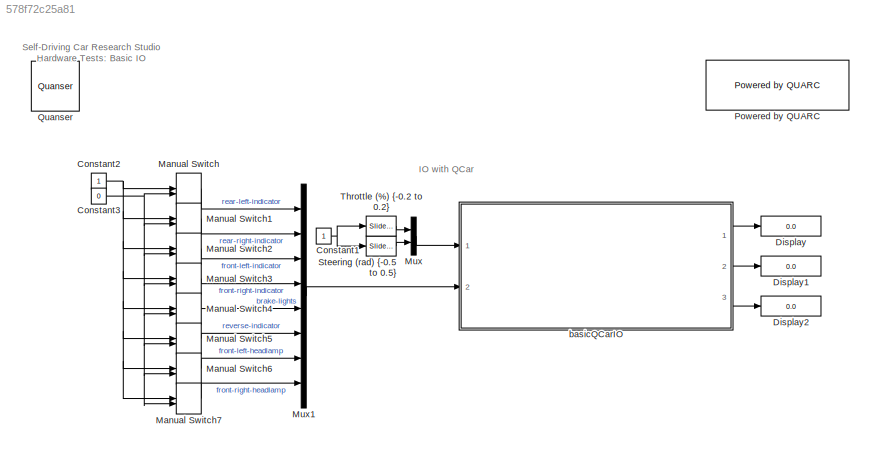
MODEL slx_578f72c25a81
KIND model
CONFIG AbsTol = auto
CONFIG EnableMultiTasking = on
CONFIG FixedStep = 0.002
CONFIG MaxStep = auto
CONFIG MinStep = auto
CONFIG RelTol = 1e-3
CONFIG SampleTimeConstraint = Unconstrained
CONFIG Solver = ode2
CONFIG SolverName = ode2
CONFIG StartTime = 0.0
CONFIG StopTime = inf
BLOCK [Constant] Constant1
BLOCK [Constant] Constant2
BLOCK [Constant] Constant3
  Value = 0
BLOCK [Display] Display
  Decimation = 0.5/qc_get_step_size
  Ports = [1]
BLOCK [Display] Display1
  Decimation = 0.5/qc_get_step_size
  Ports = [1]
BLOCK [Display] Display2
  Decimation = 0.5/qc_get_step_size
  Ports = [1]
BLOCK [ManualSwitch] Manual Switch
BLOCK [ManualSwitch] Manual Switch1
BLOCK [ManualSwitch] Manual Switch2
BLOCK [ManualSwitch] Manual Switch3
BLOCK [ManualSwitch] Manual Switch4
BLOCK [ManualSwitch] Manual Switch5
BLOCK [ManualSwitch] Manual Switch6
BLOCK [ManualSwitch] Manual Switch7
BLOCK [Mux] Mux
  DisplayOption = bar
  Inputs = 2
  Ports = [2, 1]
BLOCK [Mux] Mux1
  DisplayOption = bar
  Inputs = 8
  Ports = [8, 1]
BLOCK [Reference] Powered by QUARC  REF=quarc_library/Logos/Powered by QUARC
  Ports = []
  SourceBlock = quarc_library/Logos/Powered by QUARC
  SourceProductName = QUARC Targets
  SourceType = Powered by QUARC
BLOCK [Reference] Quanser  REF=quarc_library/Logos/Quanser
  Ports = []
  SourceBlock = quarc_library/Logos/Quanser
  SourceProductName = QUARC Targets
  SourceType = Powered by Quanser
BLOCK [Reference] Steering (rad) {-0.5 to 0.5}  REF=simulink/Math
Operations/Slider
Gain
  Ports = [1, 1]
  SourceBlock = simulink/Math\nOperations/Slider\nGain
  SourceType = Slider Gain
BLOCK [Reference] Throttle (%) {-0.2 to 0.2}  REF=simulink/Math
Operations/Slider
Gain
  Ports = [1, 1]
  SourceBlock = simulink/Math\nOperations/Slider\nGain
  SourceType = Slider Gain
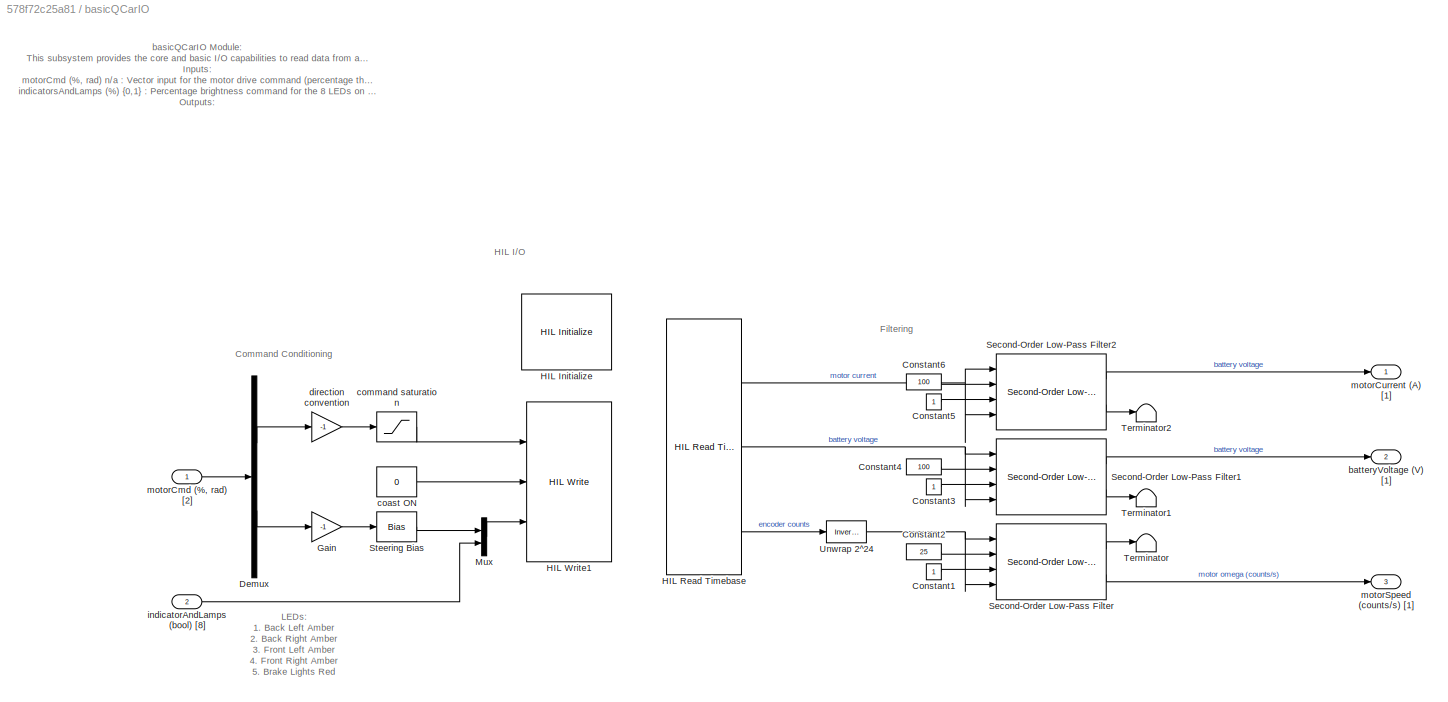
BLOCK [SubSystem] basicQCarIO
  Ports = [2, 3]
BLOCK [Constant] basicQCarIO/Constant1
BLOCK [Constant] basicQCarIO/Constant2
  Value = 25
BLOCK [Constant] basicQCarIO/Constant3
BLOCK [Constant] basicQCarIO/Constant4
  Value = 100
BLOCK [Constant] basicQCarIO/Constant5
BLOCK [Constant] basicQCarIO/Constant6
  Value = 100
BLOCK [Demux] basicQCarIO/Demux
  Outputs = 2
  Ports = [1, 2]
BLOCK [Gain] basicQCarIO/Gain
  Gain = -1
BLOCK [Reference] basicQCarIO/HIL Initialize  REF=quarc_library/Data Acquisition/Generic/Configuration/HIL Initialize
  AttributesFormatString = %<object_name> (%<board_type>-%<board_number>)
  Ports = []
  SourceBlock = quarc_library/Data Acquisition/Generic/Configuration/HIL Initialize
  SourceProductName = QUARC Targets
  SourceType = HIL Initialize
  UserDataPersistent = on
BLOCK [Reference] basicQCarIO/HIL Read Timebase  REF=quarc_library/Data Acquisition/Generic/Timebases/HIL Read
Timebase
  AttributesFormatString = (%<object_name>)
  Ports = [0, 3]
  SourceBlock = quarc_library/Data Acquisition/Generic/Timebases/HIL Read\nTimebase
  SourceProductName = QUARC Targets
  SourceType = HIL Read Timebase
  UserDataPersistent = on
BLOCK [Reference] basicQCarIO/HIL Write1  REF=quarc_library/Data Acquisition/Generic/Immediate I//O/HIL Write
  AttributesFormatString = (%<object_name>)
  Ports = [3]
  SourceBlock = quarc_library/Data Acquisition/Generic/Immediate I//O/HIL Write
  SourceProductName = QUARC Targets
  SourceType = HIL Write
  UserDataPersistent = on
BLOCK [Mux] basicQCarIO/Mux
  DisplayOption = bar
  Inputs = 2
  Ports = [2, 1]
BLOCK [Reference] basicQCarIO/Second-Order Low-Pass Filter  REF=quarc_library/Continuous/Second-Order
Low-Pass Filter
  Ports = [4, 2]
  SourceBlock = quarc_library/Continuous/Second-Order\nLow-Pass Filter
  SourceProductName = QUARC Targets
  SourceType = Second-Order Low-Pass Filter
BLOCK [Reference] basicQCarIO/Second-Order Low-Pass Filter1  REF=quarc_library/Continuous/Second-Order
Low-Pass Filter
  Ports = [4, 2]
  SourceBlock = quarc_library/Continuous/Second-Order\nLow-Pass Filter
  SourceProductName = QUARC Targets
  SourceType = Second-Order Low-Pass Filter
BLOCK [Reference] basicQCarIO/Second-Order Low-Pass Filter2  REF=quarc_library/Continuous/Second-Order
Low-Pass Filter
  Ports = [4, 2]
  SourceBlock = quarc_library/Continuous/Second-Order\nLow-Pass Filter
  SourceProductName = QUARC Targets
  SourceType = Second-Order Low-Pass Filter
BLOCK [Bias] basicQCarIO/Steering Bias
  Bias = 0.0
  SaturateOnIntegerOverflow = off
BLOCK [Terminator] basicQCarIO/Terminator
BLOCK [Terminator] basicQCarIO/Terminator1
BLOCK [Terminator] basicQCarIO/Terminator2
BLOCK [Reference] basicQCarIO/Unwrap 2^24  REF=quarc_library/Discontinuities/Inverse
Modulus
  Ports = [1, 1]
  SourceBlock = quarc_library/Discontinuities/Inverse\nModulus
  SourceProductName = QUARC Targets
  SourceType = Inverse Modulus
BLOCK [Outport] basicQCarIO/batteryVoltage (V) [1]
  Port = 2
  VectorParamsAs1DForOutWhenUnconnected = off
BLOCK [Constant] basicQCarIO/coast ON
  Value = 0
BLOCK [Saturate] basicQCarIO/command saturation
  LowerLimit = -0.20
  UpperLimit = 0.20
BLOCK [Gain] basicQCarIO/direction convention
  Gain = -1
BLOCK [Inport] basicQCarIO/indicatorAndLamps (bool) [8]
  Port = 2
BLOCK [Inport] basicQCarIO/motorCmd (%, rad) [2]
BLOCK [Outport] basicQCarIO/motorCurrent (A) [1]
  VectorParamsAs1DForOutWhenUnconnected = off
BLOCK [Outport] basicQCarIO/motorSpeed (counts//s) [1]
  Port = 3
  VectorParamsAs1DForOutWhenUnconnected = off
ANNOTATION (root): Self-Driving Car Research Studio Hardware Tests: Basic IO
ANNOTATION (root): IO with QCar
ANNOTATION basicQCarIO: basicQCarIO Module: This subsystem provides the core and basic I/O capabilities to read data from and write data to the QCar platform. The HIL Initialize block configures the IO settings, and the HIL Write and Read blocks are used for the actual IO. You can also monitor sample and communication times. Inputs: motorCmd (%, rad) n/a : Vector input for the motor drive command (percentage throttle) as...<+426ch>
ANNOTATION basicQCarIO: LEDs: 1. Back Left Amber 2. Back Right Amber 3. Front Left Amber 4. Front Right Amber 5. Brake Lights Red 6. Reverse White 7. Left Headlamps White 8. Right Headlamps White
ANNOTATION basicQCarIO: Command Conditioning
ANNOTATION basicQCarIO: Filtering
ANNOTATION basicQCarIO: HIL I/O
NET Constant1:1 -> Steering (rad) {-0.5 to 0.5}:1, Throttle (%) {-0.2 to 0.2}:1
NET Constant2:1 -> Manual Switch1:1, Manual Switch2:1, Manual Switch3:1, Manual Switch4:1, Manual Switch5:1, Manual Switch6:1, Manual Switch7:1, Manual Switch:1
NET Constant3:1 -> Manual Switch1:2, Manual Switch2:2, Manual Switch3:2, Manual Switch4:2, Manual Switch5:2, Manual Switch6:2, Manual Switch7:2, Manual Switch:2
LINE Manual Switch1:1 -> Mux1:2
LINE Manual Switch2:1 -> Mux1:3
LINE Manual Switch3:1 -> Mux1:4
LINE Manual Switch4:1 -> Mux1:5
LINE Manual Switch5:1 -> Mux1:6
LINE Manual Switch6:1 -> Mux1:7
LINE Manual Switch7:1 -> Mux1:8
LINE Manual Switch:1 -> Mux1:1
LINE Mux1:1 -> basicQCarIO:2
LINE Mux:1 -> basicQCarIO:1
LINE Steering (rad) {-0.5 to 0.5}:1 -> Mux:2
LINE Throttle (%) {-0.2 to 0.2}:1 -> Mux:1
LINE basicQCarIO/Constant1:1 -> basicQCarIO/Second-Order Low-Pass Filter:3
LINE basicQCarIO/Constant2:1 -> basicQCarIO/Second-Order Low-Pass Filter:2
LINE basicQCarIO/Constant3:1 -> basicQCarIO/Second-Order Low-Pass Filter1:3
LINE basicQCarIO/Constant4:1 -> basicQCarIO/Second-Order Low-Pass Filter1:2
LINE basicQCarIO/Constant5:1 -> basicQCarIO/Second-Order Low-Pass Filter2:3
LINE basicQCarIO/Constant6:1 -> basicQCarIO/Second-Order Low-Pass Filter2:2
LINE basicQCarIO/Demux:1 -> basicQCarIO/direction convention:1
LINE basicQCarIO/Demux:2 -> basicQCarIO/Gain:1
LINE basicQCarIO/Gain:1 -> basicQCarIO/Steering Bias:1
NET basicQCarIO/HIL Read Timebase:1 -> basicQCarIO/Second-Order Low-Pass Filter2:1, basicQCarIO/Second-Order Low-Pass Filter2:4
NET basicQCarIO/HIL Read Timebase:2 -> basicQCarIO/Second-Order Low-Pass Filter1:1, basicQCarIO/Second-Order Low-Pass Filter1:4
LINE basicQCarIO/HIL Read Timebase:3 -> basicQCarIO/Unwrap 2^24:1
LINE basicQCarIO/Mux:1 -> basicQCarIO/HIL Write1:3
LINE basicQCarIO/Second-Order Low-Pass Filter1:1 -> basicQCarIO/batteryVoltage (V) [1]:1
LINE basicQCarIO/Second-Order Low-Pass Filter1:2 -> basicQCarIO/Terminator1:1
LINE basicQCarIO/Second-Order Low-Pass Filter2:1 -> basicQCarIO/motorCurrent (A) [1]:1
LINE basicQCarIO/Second-Order Low-Pass Filter2:2 -> basicQCarIO/Terminator2:1
LINE basicQCarIO/Second-Order Low-Pass Filter:1 -> basicQCarIO/Terminator:1
LINE basicQCarIO/Second-Order Low-Pass Filter:2 -> basicQCarIO/motorSpeed (counts//s) [1]:1
LINE basicQCarIO/Steering Bias:1 -> basicQCarIO/Mux:1
NET basicQCarIO/Unwrap 2^24:1 -> basicQCarIO/Second-Order Low-Pass Filter:1, basicQCarIO/Second-Order Low-Pass Filter:4
LINE basicQCarIO/coast ON:1 -> basicQCarIO/HIL Write1:2
LINE basicQCarIO/command saturation:1 -> basicQCarIO/HIL Write1:1
LINE basicQCarIO/direction convention:1 -> basicQCarIO/command saturation:1
LINE basicQCarIO/indicatorAndLamps (bool) [8]:1 -> basicQCarIO/Mux:2
LINE basicQCarIO/motorCmd (%, rad) [2]:1 -> basicQCarIO/Demux:1
LINE basicQCarIO:1 -> Display:1
LINE basicQCarIO:2 -> Display1:1
LINE basicQCarIO:3 -> Display2:1
note: NET lines group one-source signal fan-out (src -> all destinations, sorted); 1:1 wires keep LINE
